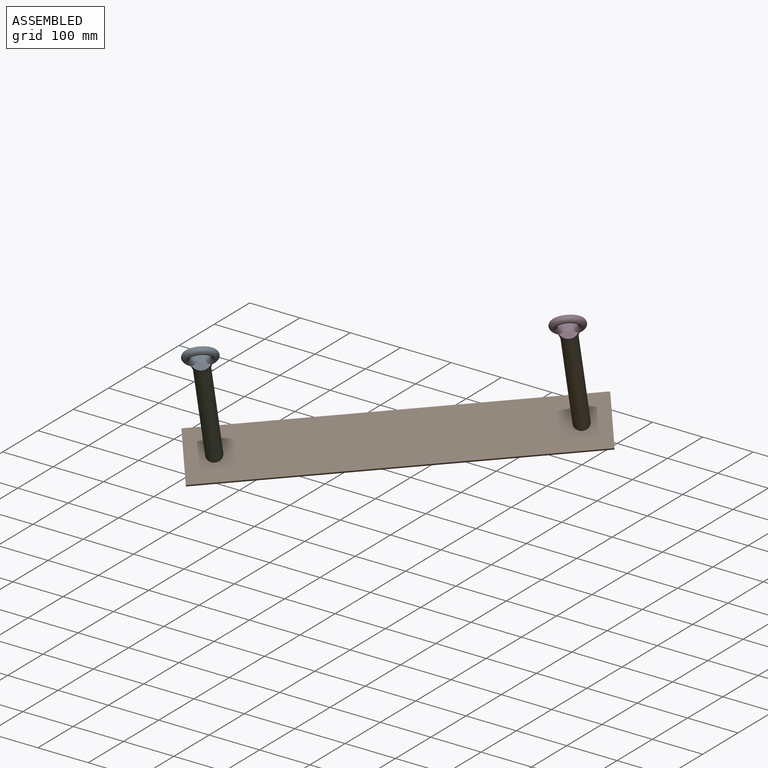
[diagram: assembled view]
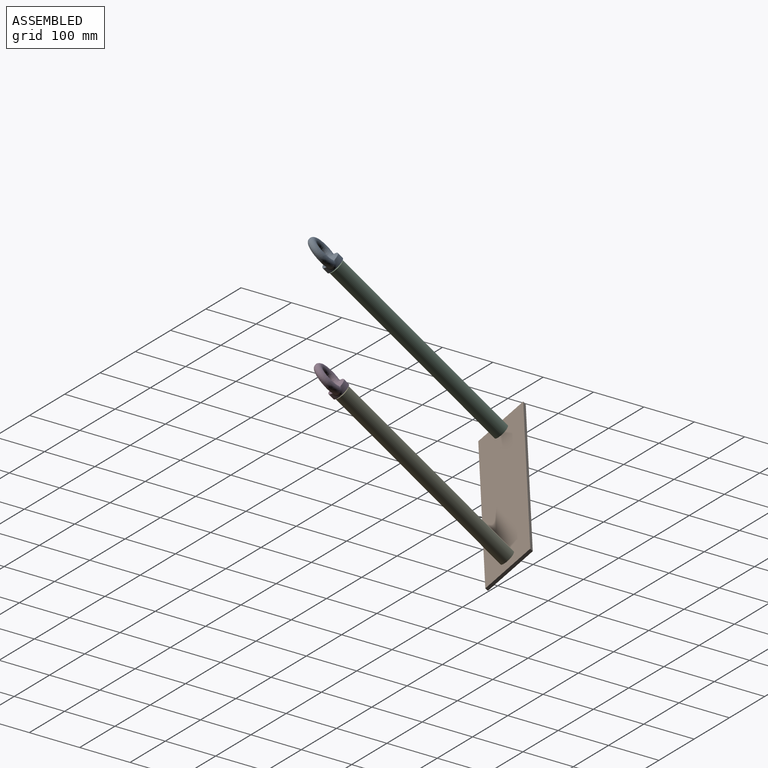
[diagram: assembled view, second angle]
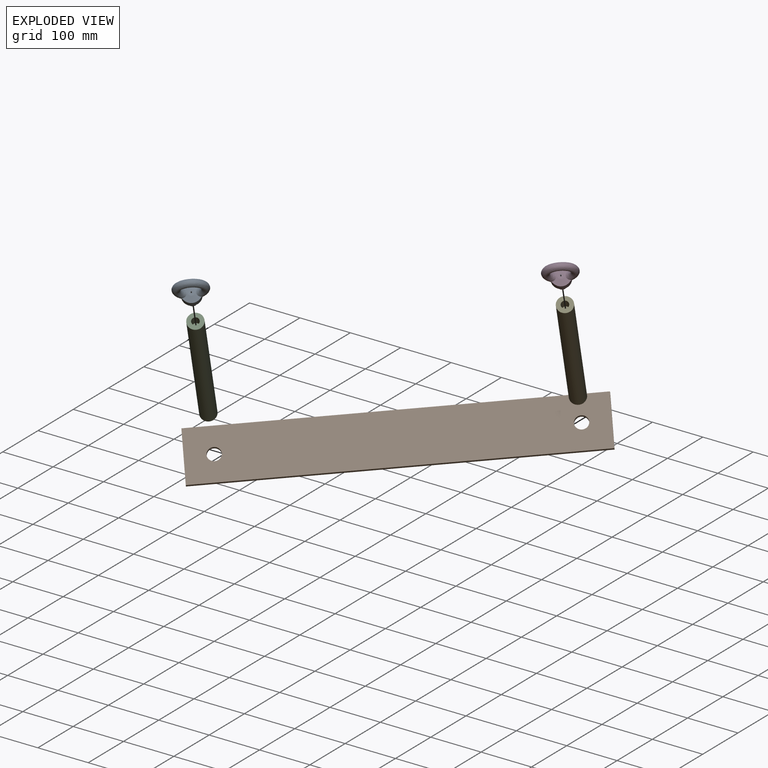
[diagram: exploded view]
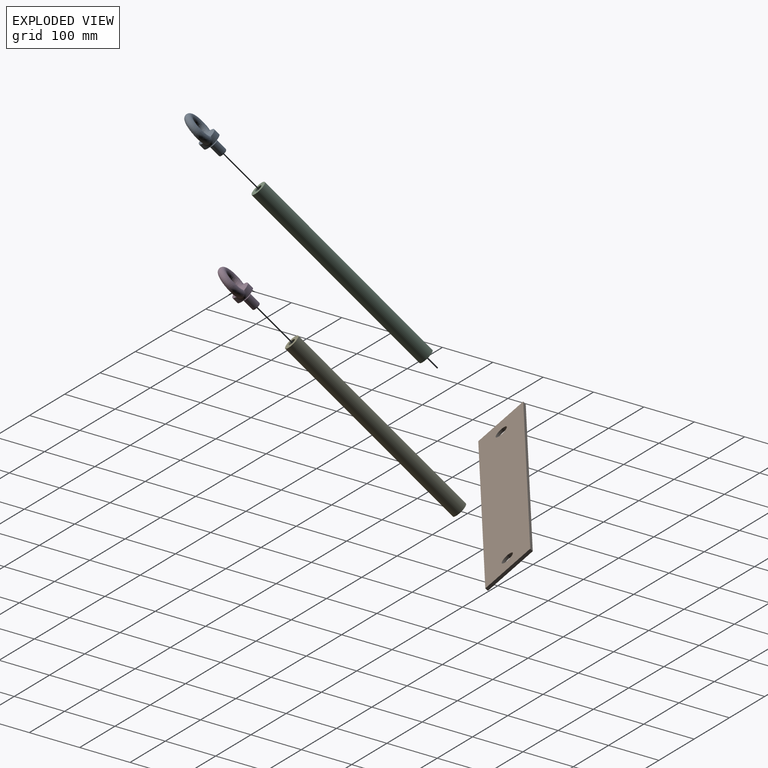
[diagram: exploded view, second angle]
ASSEMBLY  parts=5 mates=4
PART A: 19 faces, bbox 66.1x39.2x89 mm
  f0: bspline ~12.16x4.45mm, area 38.5mm2, adj f1,f8,f9,f10
  f1: torus R=8.5mm, axis (0,0,1), area 50.5mm2, adj f0,f8,f10,f13
  f2: cone r=17.5mm half-angle=75deg, axis (0,0,-1), area 649.8mm2, adj f3,f12,f14,f15,f17,f18
  f3: plane 11.67x11.67mm, normal (0,0,1), area 106.9mm2, adj f2
  f4: plane 14x14mm, normal (0,0,-1), area 153.9mm2, adj f16
  f5: cylinder r=8mm len=22mm, axis (0,0,1), area 1105.8mm2, adj f6,f16
  f6: cone r=8mm half-angle=60deg, axis (0,0,-1), area 49.3mm2, adj f5,f7
  f7: torus R=7.7mm, axis (0,0,1), area 53mm2, adj f6,f8
  f8: cylinder r=6.5mm len=13mm, axis (0,0,1), area 99.7mm2, adj f0,f1,f7,f9,f13
  f9: torus R=8.5mm, axis (0,0,1), area 50.5mm2, adj f0,f8,f10,f13
  f10: cone r=9.5mm half-angle=60deg, axis (0,0,-1), area 239.4mm2, adj f0,f1,f9,f11,f13
  f11: plane 35x35mm, normal (0,0,-1), area 471.2mm2, adj f10,f12
  f12: cylinder r=17.5mm len=35mm, axis (0,0,1), area 963.6mm2, adj f2,f11,f17,f18
  f13: bspline ~12.16x4.45mm, area 38.5mm2, adj f1,f8,f9,f10
  f14: bspline ~62.64x33.07mm, area 2738.9mm2, adj f2,f15,f17
  f15: bspline ~62.64x33.07mm, area 2739mm2, adj f2,f14,f18
  f16: cone r=8mm half-angle=45deg, axis (0,0,1), area 66.6mm2, adj f4,f5
  f17: bspline ~20.54x12.69mm, area 126.4mm2, adj f2,f12,f14
  f18: bspline ~20.54x12.69mm, area 126.4mm2, adj f2,f12,f15
PART B: 8 faces, bbox 700x100x6 mm
  f0: plane 700x6mm, normal (0,1,0), area 4200mm2, adj f1,f5,f6,f7
  f1: plane 100x6mm, normal (-1,0,0), area 600mm2, adj f0,f2,f6,f7
  f2: plane 700x6mm, normal (0,-1,0), area 4200mm2, adj f1,f5,f6,f7
  f3: cylinder r=12.5mm len=25mm, axis (0,0,-1), area 471.2mm2, adj f6,f7
  f4: cylinder r=12.5mm len=25mm, axis (0,0,-1), area 471.2mm2, adj f6,f7
  f5: plane 100x6mm, normal (1,0,0), area 600mm2, adj f0,f2,f6,f7
  f6: plane 700x100mm, normal (0,0,1), area 69018.3mm2, adj f0,f1,f2,f3,f4,f5
  f7: plane 700x100mm, normal (0,0,-1), area 69018.3mm2, adj f0,f1,f2,f3,f4,f5
PART C: 17 faces, bbox 30x30x400 mm
  f0: cylinder r=7mm len=25mm, axis (0,0,-1), area 1099.6mm2, adj f2,f3
  f1: cylinder r=15mm len=400mm, axis (0,0,-1), area 37699.1mm2, adj f2,f4
  f2: plane 30x30mm, normal (0,0,1), area 552.9mm2, adj f0,f1
  f3: plane 14x14mm, normal (0,0,1), area 153.9mm2, adj f0
  f4: plane 30x30mm, normal (0,0,-1), area 706.9mm2, adj f1
  f5: cylinder r=5mm len=25mm, axis (0,-1,0), area 785.4mm2, adj f6,f7
  f6: plane 10x10mm, normal (0,-1,0), area 78.5mm2, adj f5
  f7: plane 10x10mm, normal (0,1,0), area 78.5mm2, adj f5
  f8: cylinder r=5mm len=25mm, axis (0,-1,0), area 785.4mm2, adj f9,f10
  f9: plane 10x10mm, normal (0,-1,0), area 78.5mm2, adj f8
  f10: plane 10x10mm, normal (0,1,0), area 78.5mm2, adj f8
  f11: cylinder r=5mm len=25mm, axis (1,0,0), area 785.4mm2, adj f12,f13
  f12: plane 10x10mm, normal (1,0,0), area 78.5mm2, adj f11
  f13: plane 10x10mm, normal (-1,0,0), area 78.5mm2, adj f11
  f14: cylinder r=5mm len=25mm, axis (1,0,0), area 785.4mm2, adj f15,f16
  f15: plane 10x10mm, normal (1,0,0), area 78.5mm2, adj f14
  f16: plane 10x10mm, normal (-1,0,0), area 78.5mm2, adj f14
PART D: same geometry as A
PART E: same geometry as C
PLACE A rot(axis=(0.76,0.16,0.63),56.8deg) t=(10.26,-111,224.56)mm
PLACE B rot(axis=(0.76,0.16,0.63),56.8deg) t=(-140.28,143.73,-90.9)mm
PLACE C rot(axis=(0.76,0.16,0.63),56.8deg) t=(-9.75,-77.13,182.62)mm
PLACE D rot(axis=(0.76,0.16,0.63),56.8deg) t=(494.2,239.81,276.87)mm
PLACE E rot(axis=(0.76,0.16,0.63),56.8deg) t=(474.18,273.68,234.94)mm
MATE fastened A.f1 <-> C.f0  axis (-0.35,0.59,-0.73) through (-9.75,-77.13,182.62)mm
MATE fastened B.f3 <-> C.f1  axis (0.35,-0.59,0.73) through (-140.28,143.73,-90.9)mm
MATE fastened E.f1 <-> B.f4  axis (-0.35,0.59,-0.73) through (343.65,494.54,-38.58)mm
MATE fastened D.f1 <-> E.f0  axis (-0.35,0.59,-0.73) through (474.18,273.68,234.94)mm
